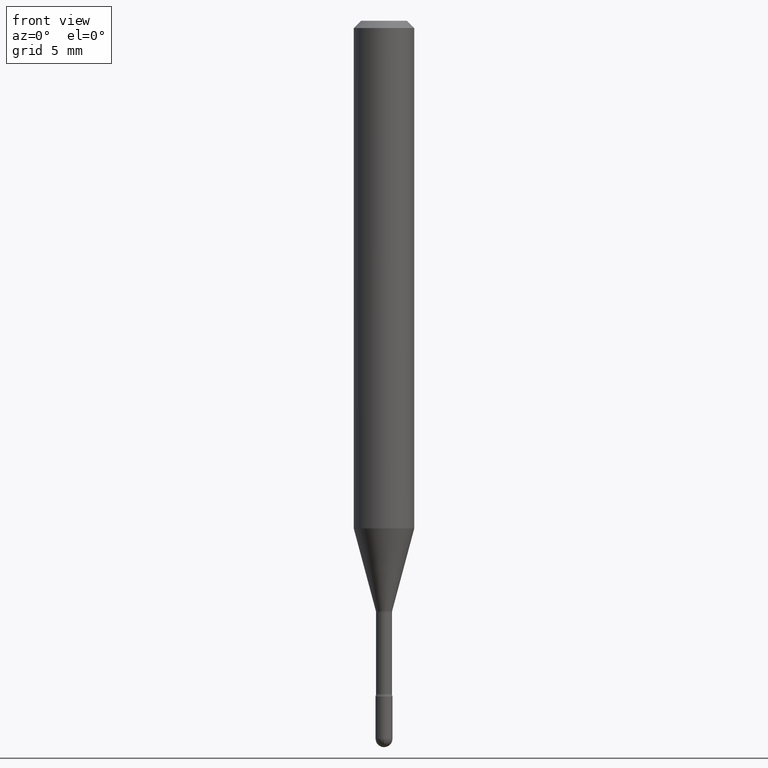
[diagram: clean part render]
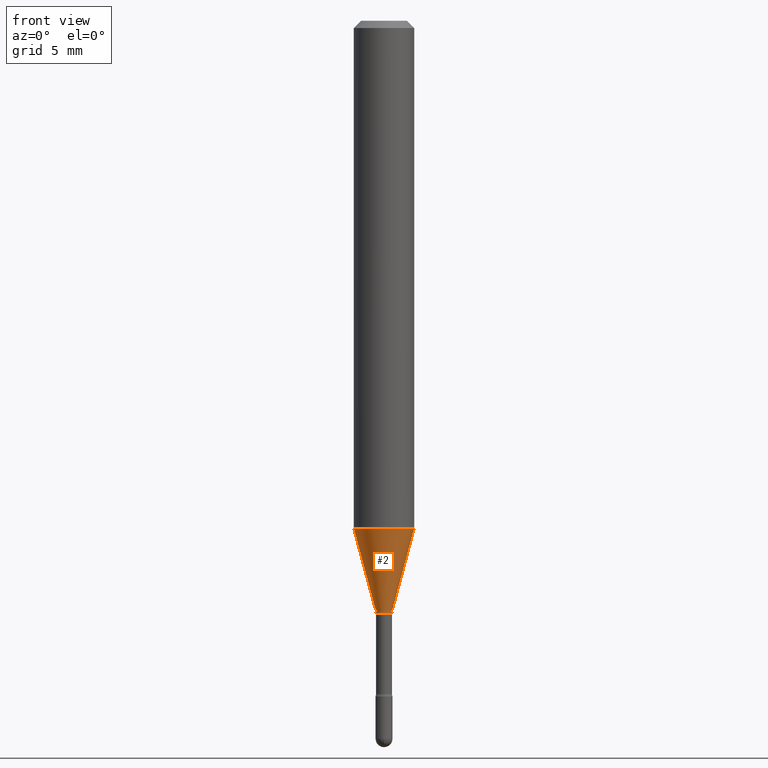
[diagram: same view with one face highlighted and labeled with its STEP entity id]
A machine part, front view. The second image highlights one B-rep face of the part: STEP entity #2.
In plain terms, the highlighted conical surface has half-angle 15 deg.
Its self-contained STEP definition (entity closure, byte-faithful):
#2 = ADVANCED_FACE ( 'NONE', ( #327 ), #126, .T. ) ;
#20 = VERTEX_POINT ( 'NONE', #65 ) ;
#24 = VECTOR ( 'NONE', #446, 39.37007874015748143 ) ;
#41 = AXIS2_PLACEMENT_3D ( 'NONE', #220, #525, #523 ) ;
#65 = CARTESIAN_POINT ( 'NONE',  ( -0.06250000000000000000, -3.215468759739966983E-15, -1.048139060311453319 ) ) ;
#73 = VERTEX_POINT ( 'NONE', #486 ) ;
#114 = EDGE_CURVE ( 'NONE', #73, #440, #387, .T. ) ;
#122 = CARTESIAN_POINT ( 'NONE',  ( 0.01696111260566397425, -4.371386055272411165E-15, -1.218092501787273241 ) ) ;
#126 = CONICAL_SURFACE ( 'NONE', #406, 0.01696111260566397425, 0.2617993877991496299 ) ;
#133 = EDGE_CURVE ( 'NONE', #20, #440, #290, .T. ) ;
#185 = ORIENTED_EDGE ( 'NONE', *, *, #393, .F. ) ;
#202 = CARTESIAN_POINT ( 'NONE',  ( 2.978807216168789301E-29, -4.252947238975025450E-15, -1.218092501787273241 ) ) ;
#209 = DIRECTION ( 'NONE',  ( -2.445468806185136597E-29, 3.491481338843145583E-15, 1.000000000000000000 ) ) ;
#213 = DIRECTION ( 'NONE',  ( 0.2588190451025209615, 1.565188264969624926E-15, 0.9659258262890682012 ) ) ;
#220 = CARTESIAN_POINT ( 'NONE',  ( 2.563191376535860967E-29, -3.659557969590029993E-15, -1.048139060311453319 ) ) ;
#228 = VERTEX_POINT ( 'NONE', #302 ) ;
#240 = ORIENTED_EDGE ( 'NONE', *, *, #133, .F. ) ;
#252 = AXIS2_PLACEMENT_3D ( 'NONE', #202, #323, #412 ) ;
#271 = VECTOR ( 'NONE', #213, 39.37007874015748143 ) ;
#285 = CARTESIAN_POINT ( 'NONE',  ( 2.978807216168789301E-29, -4.252947238975025450E-15, -1.218092501787273241 ) ) ;
#290 = CIRCLE ( 'NONE', #41, 0.06250000000000000000 ) ;
#302 = CARTESIAN_POINT ( 'NONE',  ( -0.01696111260566397425, -3.673950022595677851E-15, -1.218092501787273241 ) ) ;
#323 = DIRECTION ( 'NONE',  ( -2.445468806185136597E-29, 3.491481338843145583E-15, 1.000000000000000000 ) ) ;
#327 = FACE_OUTER_BOUND ( 'NONE', #445, .T. ) ;
#333 = CIRCLE ( 'NONE', #252, 0.01696111260566397425 ) ;
#336 = DIRECTION ( 'NONE',  ( 1.000000000000000000, -6.982962677686286432E-15, 0.000000000000000000 ) ) ;
#352 = CARTESIAN_POINT ( 'NONE',  ( -0.01696111260566397425, -4.132431285451389114E-15, -1.218092501787273241 ) ) ;
#387 = LINE ( 'NONE', #122, #271 ) ;
#393 = EDGE_CURVE ( 'NONE', #228, #20, #538, .T. ) ;
#406 = AXIS2_PLACEMENT_3D ( 'NONE', #285, #209, #336 ) ;
#412 = DIRECTION ( 'NONE',  ( 1.000000000000000000, -6.982962677686286432E-15, 0.000000000000000000 ) ) ;
#438 = ORIENTED_EDGE ( 'NONE', *, *, #114, .T. ) ;
#440 = VERTEX_POINT ( 'NONE', #530 ) ;
#445 = EDGE_LOOP ( 'NONE', ( #185, #554, #438, #240 ) ) ;
#446 = DIRECTION ( 'NONE',  ( -0.2588190451025209615, 5.211531920934547097E-15, 0.9659258262890682012 ) ) ;
#486 = CARTESIAN_POINT ( 'NONE',  ( 0.01696111260566397425, -4.371386055272411165E-15, -1.218092501787273241 ) ) ;
#523 = DIRECTION ( 'NONE',  ( 1.000000000000000000, -6.982962677686270655E-15, 0.000000000000000000 ) ) ;
#525 = DIRECTION ( 'NONE',  ( -2.445468806185136597E-29, 3.491481338843145583E-15, 1.000000000000000000 ) ) ;
#527 = EDGE_CURVE ( 'NONE', #228, #73, #333, .T. ) ;
#530 = CARTESIAN_POINT ( 'NONE',  ( 0.06250000000000000000, -4.095993136945421663E-15, -1.048139060311453319 ) ) ;
#538 = LINE ( 'NONE', #352, #24 ) ;
#554 = ORIENTED_EDGE ( 'NONE', *, *, #527, .T. ) ;